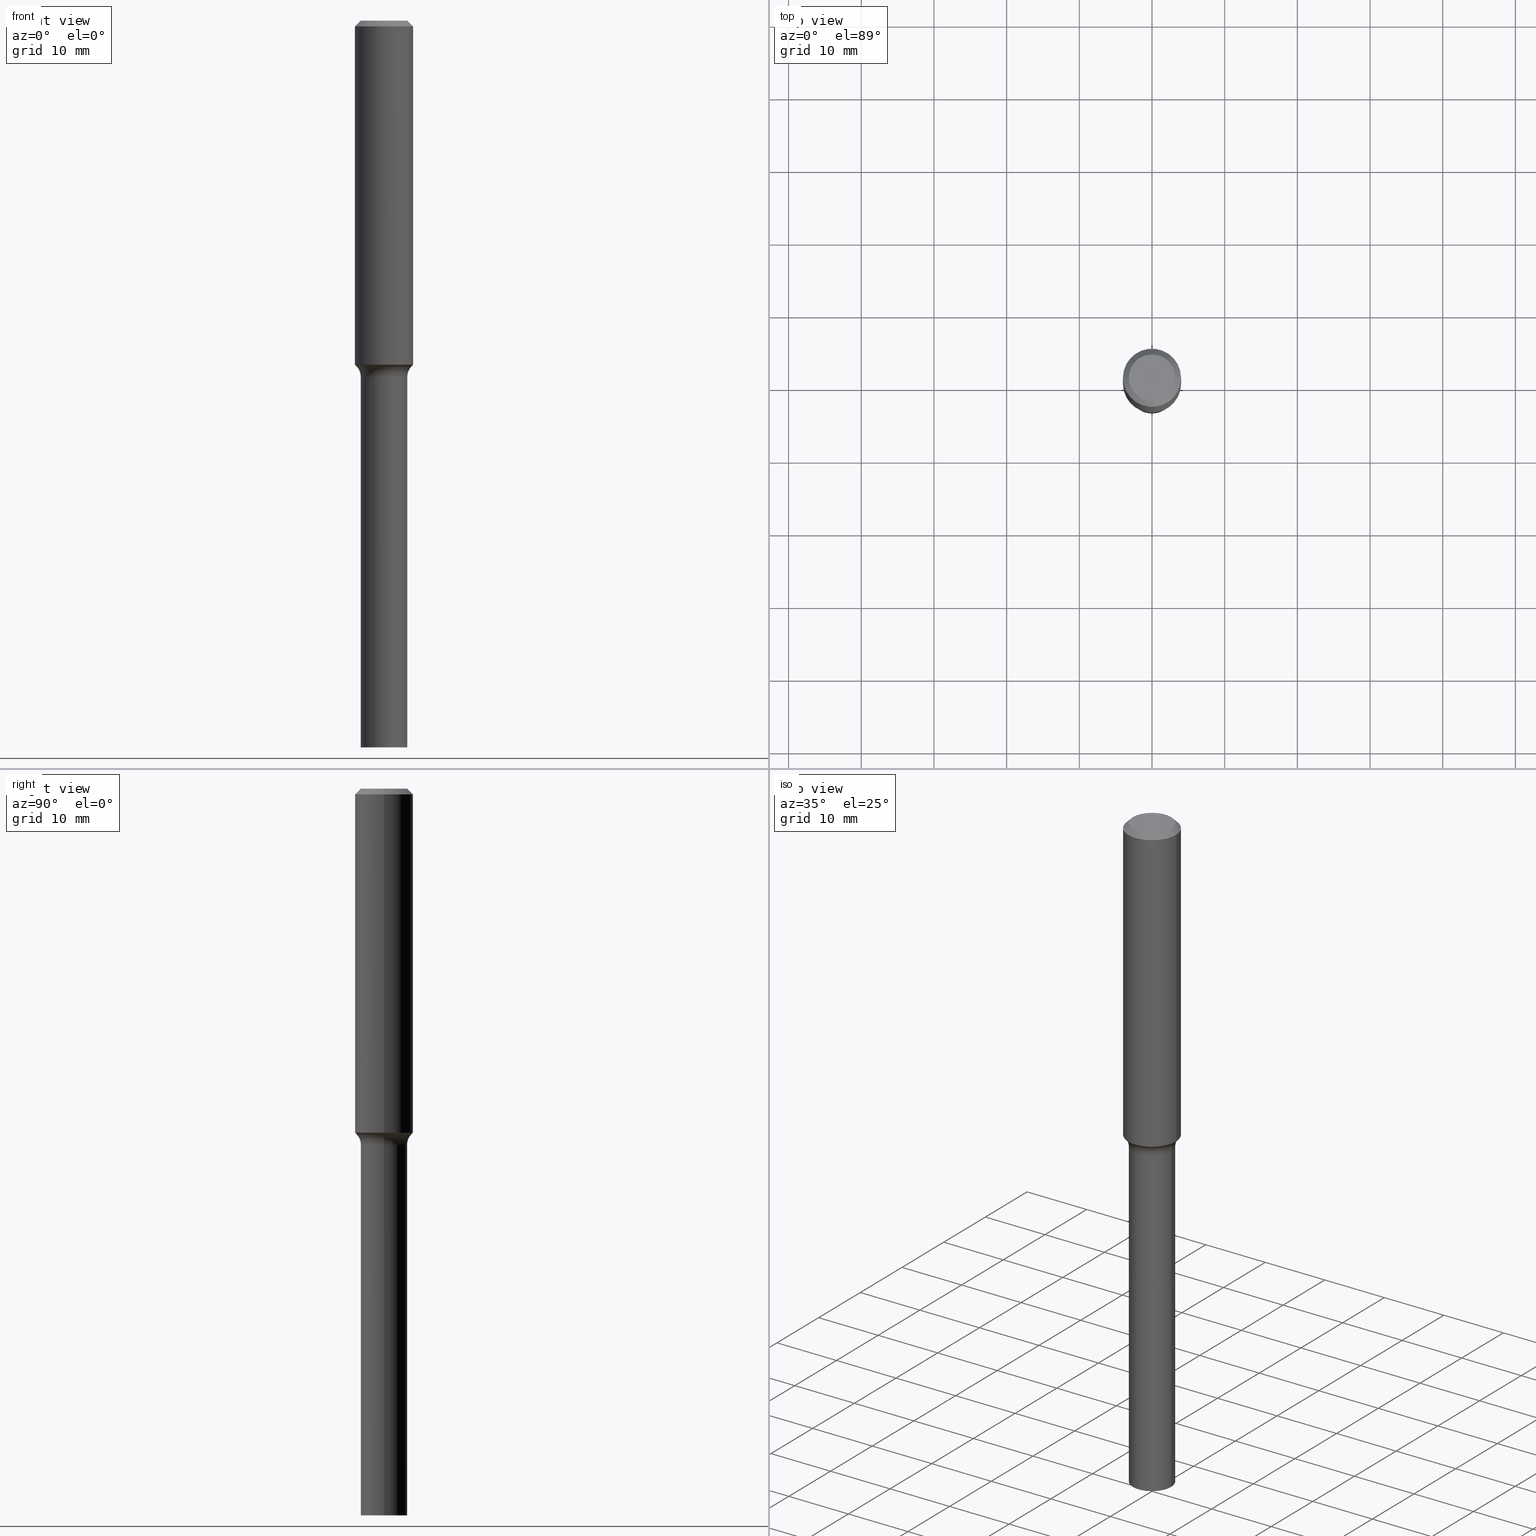
[diagram: canonical four-view strip — front | top / right | iso, engineering-drawing reading convention]
A machine part, canonical four-view strip (front | top / right | iso — engineering-drawing reading convention). The complete STEP part file that produces these views, byte-faithful:
ISO-10303-21;
HEADER;
FILE_DESCRIPTION (( 'STEP AP203' ),
    '1' );
FILE_NAME ('67851.STEP',
    '2025-04-01T15:31:34',
    ( '' ),
    ( '' ),
    'SwSTEP 2.0',
    'SolidWorks 2024',
    '' );
FILE_SCHEMA (( 'CONFIG_CONTROL_DESIGN' ));
ENDSEC;

DATA;
#1 = LINE ( 'NONE', #397, #132 ) ;
#2 = APPLICATION_CONTEXT ( 'configuration controlled 3d designs of mechanical parts and assemblies' ) ;
#3 = AXIS2_PLACEMENT_3D ( 'NONE', #54, #374, #501 ) ;
#4 = COORDINATED_UNIVERSAL_TIME_OFFSET ( 5, 0, .BEHIND. ) ;
#5 = DIRECTION ( 'NONE',  ( -2.445468806185136597E-29, 3.491481338843145583E-15, 1.000000000000000000 ) ) ;
#6 = PERSON_AND_ORGANIZATION_ROLE ( 'creator' ) ;
#7 = DIRECTION ( 'NONE',  ( -0.6819983600624915931, 7.399397606724259755E-15, 0.7313537016191768991 ) ) ;
#8 = DATE_AND_TIME ( #223, #389 ) ;
#9 = CIRCLE ( 'NONE', #343, 0.1260000000000000009 ) ;
#10 = PERSON_AND_ORGANIZATION_ROLE ( 'design_supplier' ) ;
#11 = ADVANCED_FACE ( 'NONE', ( #270 ), #108, .T. ) ;
#12 = DIRECTION ( 'NONE',  ( 2.438088387897960049E-29, -3.491481338843145188E-15, -1.000000000000000000 ) ) ;
#13 = CARTESIAN_POINT ( 'NONE',  ( 4.583884869898948123E-29, -6.544572738846040921E-15, -1.874440131195000303 ) ) ;
#14 = VERTEX_POINT ( 'NONE', #347 ) ;
#15 = FACE_OUTER_BOUND ( 'NONE', #135, .T. ) ;
#16 = VECTOR ( 'NONE', #234, 39.37007874015748143 ) ;
#17 = ORIENTED_EDGE ( 'NONE', *, *, #201, .T. ) ;
#18 = ORIENTED_EDGE ( 'NONE', *, *, #382, .T. ) ;
#19 = EDGE_CURVE ( 'NONE', #57, #31, #142, .T. ) ;
#20 = ORIENTED_EDGE ( 'NONE', *, *, #405, .T. ) ;
#21 = CC_DESIGN_DATE_AND_TIME_ASSIGNMENT ( #318, #80, ( #48 ) ) ;
#22 = CIRCLE ( 'NONE', #275, 0.1260000000000000009 ) ;
#23 = EDGE_LOOP ( 'NONE', ( #144, #308 ) ) ;
#24 = ORIENTED_EDGE ( 'NONE', *, *, #117, .T. ) ;
#25 = EDGE_CURVE ( 'NONE', #70, #300, #146, .T. ) ;
#26 = EDGE_CURVE ( 'NONE', #432, #465, #352, .T. ) ;
#27 = ORIENTED_EDGE ( 'NONE', *, *, #301, .T. ) ;
#28 = FACE_OUTER_BOUND ( 'NONE', #380, .T. ) ;
#29 = VECTOR ( 'NONE', #118, 39.37007874015748143 ) ;
#30 = CC_DESIGN_APPROVAL ( #107, ( #156 ) ) ;
#31 = VERTEX_POINT ( 'NONE', #510 ) ;
#32 = CARTESIAN_POINT ( 'NONE',  ( 6.644338746405015317E-29, -9.486354797636825890E-15, -2.717000000000000082 ) ) ;
#33 = DIRECTION ( 'NONE',  ( 0.7071067811864267805, -2.468850131080992517E-15, 0.7071067811866682540 ) ) ;
#34 = DIRECTION ( 'NONE',  ( -1.000000000000000000, 7.105427357601005014E-15, 0.000000000000000000 ) ) ;
#35 = PERSON_AND_ORGANIZATION_ROLE ( 'classification_officer' ) ;
#36 = CYLINDRICAL_SURFACE ( 'NONE', #237, 0.1259999999999999454 ) ;
#37 = CARTESIAN_POINT ( 'NONE',  ( -0.1260000000000001119, -8.591070950579098861E-15, -2.717000000000000082 ) ) ;
#38 = PERSON_AND_ORGANIZATION ( #170, #191 ) ;
#39 = DIRECTION ( 'NONE',  ( -0.7071067811865447972, 2.468850131082228662E-15, -0.7071067811865501263 ) ) ;
#40 = CARTESIAN_POINT ( 'NONE',  ( 6.644338746405015317E-29, -9.486354797636825890E-15, -2.717000000000000082 ) ) ;
#41 = AXIS2_PLACEMENT_3D ( 'NONE', #420, #183, #415 ) ;
#42 = PRODUCT_DEFINITION_FORMATION_WITH_SPECIFIED_SOURCE ( 'ANY', '', #410, .NOT_KNOWN. ) ;
#43 = DIRECTION ( 'NONE',  ( 1.000000000000000000, -6.982962677686270655E-15, 0.000000000000000000 ) ) ;
#44 = ADVANCED_FACE ( 'NONE', ( #428 ), #315, .T. ) ;
#45 = PERSON_AND_ORGANIZATION ( #170, #191 ) ;
#46 = AXIS2_PLACEMENT_3D ( 'NONE', #366, #12, #332 ) ;
#47 = CARTESIAN_POINT ( 'NONE',  ( 7.703226739483235729E-31, -1.099816621735598771E-16, -0.03150000000000022921 ) ) ;
#48 = SECURITY_CLASSIFICATION ( '', '', #286 ) ;
#49 = MANIFOLD_SOLID_BREP ( 'Body-Move/Copy2[2]', #256 ) ;
#50 = ADVANCED_FACE ( 'NONE', ( #152 ), #150, .F. ) ;
#51 = ORIENTED_EDGE ( 'NONE', *, *, #313, .T. ) ;
#52 = MANIFOLD_SOLID_BREP ( 'Body-Move/Copy2[1]', #371 ) ;
#53 = ORIENTED_EDGE ( 'NONE', *, *, #313, .F. ) ;
#54 = CARTESIAN_POINT ( 'NONE',  ( 4.717309327131129015E-29, -6.735067502628427403E-15, -1.929000000000000048 ) ) ;
#55 = AXIS2_PLACEMENT_3D ( 'NONE', #84, #233, #192 ) ;
#56 = CARTESIAN_POINT ( 'NONE',  ( 0.000000000000000000, 0.000000000000000000, 0.000000000000000000 ) ) ;
#57 = VERTEX_POINT ( 'NONE', #403 ) ;
#58 = ORIENTED_EDGE ( 'NONE', *, *, #69, .F. ) ;
#59 = ORIENTED_EDGE ( 'NONE', *, *, #327, .T. ) ;
#60 = CARTESIAN_POINT ( 'NONE',  ( 0.1259999999999999454, -8.798532973884691559E-16, 6.143982737502876745E-30 ) ) ;
#61 = CC_DESIGN_PERSON_AND_ORGANIZATION_ASSIGNMENT ( #126, #10, ( #42 ) ) ;
#62 = ORIENTED_EDGE ( 'NONE', *, *, #327, .F. ) ;
#63 = DIRECTION ( 'NONE',  ( -2.445468806185136597E-29, 3.491481338843145583E-15, 1.000000000000000000 ) ) ;
#64 = COORDINATED_UNIVERSAL_TIME_OFFSET ( 5, 0, .BEHIND. ) ;
#65 = ADVANCED_FACE ( 'NONE', ( #399 ), #446, .T. ) ;
#66 = VECTOR ( 'NONE', #181, 39.37007874015748143 ) ;
#67 = DIRECTION ( 'NONE',  ( 1.000000000000000000, -6.982962677686271444E-15, 0.000000000000000000 ) ) ;
#68 = CARTESIAN_POINT ( 'NONE',  ( 6.644338746405015317E-29, -9.486354797636825890E-15, -2.717000000000000082 ) ) ;
#69 = EDGE_CURVE ( 'NONE', #251, #484, #190, .T. ) ;
#70 = VERTEX_POINT ( 'NONE', #79 ) ;
#71 = DIRECTION ( 'NONE',  ( 1.000000000000000000, -6.982962677686269077E-15, 0.000000000000000000 ) ) ;
#72 =( LENGTH_UNIT ( ) NAMED_UNIT ( * ) SI_UNIT ( $, .METRE. ) );
#73 = CIRCLE ( 'NONE', #368, 0.1260000000000000009 ) ;
#74 = CARTESIAN_POINT ( 'NONE',  ( 6.644338746405015317E-29, -9.486354797636825890E-15, -2.717000000000000082 ) ) ;
#75 = DIRECTION ( 'NONE',  ( 1.000000000000000000, -6.982962677686259611E-15, 0.000000000000000000 ) ) ;
#76 = EDGE_CURVE ( 'NONE', #454, #349, #165, .T. ) ;
#77 = DIRECTION ( 'NONE',  ( -2.438088387897960049E-29, 3.491481338843145188E-15, 1.000000000000000000 ) ) ;
#78 = DIRECTION ( 'NONE',  ( -2.445468806185136877E-29, 3.491481338843145188E-15, 1.000000000000000000 ) ) ;
#79 = CARTESIAN_POINT ( 'NONE',  ( -0.1255000000000000004, -8.591974437083788559E-15, -2.717000000000000082 ) ) ;
#80 = DATE_TIME_ROLE ( 'classification_date' ) ;
#81 = APPROVAL_ROLE ( '' ) ;
#82 = AXIS2_PLACEMENT_3D ( 'NONE', #252, #335, #131 ) ;
#83 = EDGE_CURVE ( 'NONE', #503, #179, #231, .T. ) ;
#84 = CARTESIAN_POINT ( 'NONE',  ( 4.717309327131129015E-29, -6.735067502628427403E-15, -1.929000000000000048 ) ) ;
#85 = DATE_AND_TIME ( #129, #431 ) ;
#86 = ORIENTED_EDGE ( 'NONE', *, *, #306, .F. ) ;
#87 = AXIS2_PLACEMENT_3D ( 'NONE', #249, #288, #209 ) ;
#88 = ADVANCED_BREP_SHAPE_REPRESENTATION ( '67851', ( #52, #49, #353 ), #419 ) ;
#89 = FACE_OUTER_BOUND ( 'NONE', #138, .T. ) ;
#90 = ORIENTED_EDGE ( 'NONE', *, *, #262, .F. ) ;
#91 = CYLINDRICAL_SURFACE ( 'NONE', #115, 0.1259999999999999454 ) ;
#92 = APPROVAL_ROLE ( '' ) ;
#93 = CARTESIAN_POINT ( 'NONE',  ( 0.1260000000000000009, -1.036446235435587453E-14, -2.716499999999999915 ) ) ;
#94 = ORIENTED_EDGE ( 'NONE', *, *, #177, .F. ) ;
#95 = CARTESIAN_POINT ( 'NONE',  ( 0.1474917038704664507, -7.574501802241863797E-15, -1.874440131195000303 ) ) ;
#96 = CARTESIAN_POINT ( 'NONE',  ( 0.1575000000000000011, -1.190510096822576223E-15, -0.03150000000000022921 ) ) ;
#97 = DIMENSIONAL_EXPONENTS ( 1.000000000000000000, 0.000000000000000000, 0.000000000000000000, 0.000000000000000000, 0.000000000000000000, 0.000000000000000000, 0.000000000000000000 ) ;
#98 = FACE_OUTER_BOUND ( 'NONE', #504, .T. ) ;
#99 = AXIS2_PLACEMENT_3D ( 'NONE', #13, #169, #259 ) ;
#100 = ORIENTED_EDGE ( 'NONE', *, *, #117, .F. ) ;
#101 = EDGE_CURVE ( 'NONE', #369, #340, #162, .T. ) ;
#102 = FACE_OUTER_BOUND ( 'NONE', #411, .T. ) ;
#103 = EDGE_LOOP ( 'NONE', ( #467, #111, #336, #508 ) ) ;
#104 = CARTESIAN_POINT ( 'NONE',  ( -0.1575000000000000011, -2.189436083991743713E-15, -0.03150000000000022921 ) ) ;
#105 = CARTESIAN_POINT ( 'NONE',  ( 4.583884869898948123E-29, -6.544572738846040921E-15, -1.874440131195000303 ) ) ;
#106 = ORIENTED_EDGE ( 'NONE', *, *, #443, .F. ) ;
#107 = APPROVAL ( #402, 'UNSPECIFIED' ) ;
#108 = CONICAL_SURFACE ( 'NONE', #215, 0.1474917038704665617, 0.7504915783575523136 ) ;
#109 = CIRCLE ( 'NONE', #124, 0.1260000000000000009 ) ;
#110 = ORIENTED_EDGE ( 'NONE', *, *, #69, .T. ) ;
#111 = ORIENTED_EDGE ( 'NONE', *, *, #409, .T. ) ;
#112 = APPROVAL_ROLE ( '' ) ;
#113 = EDGE_CURVE ( 'NONE', #392, #465, #22, .T. ) ;
#114 = CARTESIAN_POINT ( 'NONE',  ( -0.1474917038704665617, -5.496581151145642635E-15, -1.874440131195000303 ) ) ;
#115 = AXIS2_PLACEMENT_3D ( 'NONE', #176, #210, #172 ) ;
#116 = CARTESIAN_POINT ( 'NONE',  ( 0.1255000000000000004, -1.036271661368645224E-14, -2.717000000000000082 ) ) ;
#117 = EDGE_CURVE ( 'NONE', #369, #226, #473, .T. ) ;
#118 = DIRECTION ( 'NONE',  ( -2.445468806185136877E-29, 3.491481338843145188E-15, 1.000000000000000000 ) ) ;
#119 = DIRECTION ( 'NONE',  ( 1.000000000000000000, -6.982962677686265922E-15, 4.876281427513067258E-29 ) ) ;
#120 = DIRECTION ( 'NONE',  ( 1.000000000000000000, -6.982962677686270655E-15, 0.000000000000000000 ) ) ;
#121 = APPLICATION_PROTOCOL_DEFINITION ( 'international standard', 'config_control_design', 1994, #2 ) ;
#122 = DIRECTION ( 'NONE',  ( -2.445468806185136597E-29, 3.491481338843145583E-15, 1.000000000000000000 ) ) ;
#123 = ADVANCED_FACE ( 'NONE', ( #102 ), #342, .T. ) ;
#124 = AXIS2_PLACEMENT_3D ( 'NONE', #514, #317, #120 ) ;
#125 = AXIS2_PLACEMENT_3D ( 'NONE', #394, #77, #518 ) ;
#126 = PERSON_AND_ORGANIZATION ( #170, #191 ) ;
#127 = CARTESIAN_POINT ( 'NONE',  ( 0.2059999999999999054, -8.173557814231798409E-15, -1.929000000000000048 ) ) ;
#128 = DIRECTION ( 'NONE',  ( -2.445468806185136597E-29, 3.491481338843145583E-15, 1.000000000000000000 ) ) ;
#129 = CALENDAR_DATE ( 2025, 1, 4 ) ;
#130 = CARTESIAN_POINT ( 'NONE',  ( 6.643116012001922516E-29, -9.484609056967403598E-15, -2.716499999999999915 ) ) ;
#131 = DIRECTION ( 'NONE',  ( 1.000000000000000000, -6.982962677686273021E-15, 0.000000000000000000 ) ) ;
#132 = VECTOR ( 'NONE', #39, 39.37007874015748854 ) ;
#133 = AXIS2_PLACEMENT_3D ( 'NONE', #56, #376, #161 ) ;
#134 = DIRECTION ( 'NONE',  ( 2.438088387897960049E-29, -3.491481338843145188E-15, -1.000000000000000000 ) ) ;
#135 = EDGE_LOOP ( 'NONE', ( #492, #232, #490, #486 ) ) ;
#136 = FACE_OUTER_BOUND ( 'NONE', #263, .T. ) ;
#137 = DIRECTION ( 'NONE',  ( 1.000000000000000000, -6.982962677686266711E-15, 0.000000000000000000 ) ) ;
#138 = EDGE_LOOP ( 'NONE', ( #246, #184 ) ) ;
#139 = DIRECTION ( 'NONE',  ( -2.445468806185136877E-29, 3.491481338843145188E-15, 1.000000000000000000 ) ) ;
#140 = APPROVAL ( #364, 'UNSPECIFIED' ) ;
#141 = EDGE_LOOP ( 'NONE', ( #346, #427, #51, #18 ) ) ;
#142 = CIRCLE ( 'NONE', #509, 0.07999999999999993228 ) ;
#143 = CARTESIAN_POINT ( 'NONE',  ( 4.583884869898948123E-29, -6.544572738846040921E-15, -1.874440131195000303 ) ) ;
#144 = ORIENTED_EDGE ( 'NONE', *, *, #475, .T. ) ;
#145 = CARTESIAN_POINT ( 'NONE',  ( 4.583884869898948123E-29, -6.544572738846040921E-15, -1.874440131195000303 ) ) ;
#146 = LINE ( 'NONE', #305, #438 ) ;
#147 = CARTESIAN_POINT ( 'NONE',  ( -0.1575000000000000844, 1.119104808822158392E-15, -7.747322767151481189E-30 ) ) ;
#148 = EDGE_CURVE ( 'NONE', #454, #251, #345, .T. ) ;
#149 = ORIENTED_EDGE ( 'NONE', *, *, #163, .T. ) ;
#150 = PLANE ( 'NONE',  #499 ) ;
#151 = AXIS2_PLACEMENT_3D ( 'NONE', #487, #134, #354 ) ;
#152 = FACE_OUTER_BOUND ( 'NONE', #23, .T. ) ;
#153 = APPROVAL_STATUS ( 'not_yet_approved' ) ;
#154 = CYLINDRICAL_SURFACE ( 'NONE', #451, 0.1575000000000000844 ) ;
#155 = DIRECTION ( 'NONE',  ( -2.445468806185136597E-29, 3.491481338843145583E-15, 1.000000000000000000 ) ) ;
#156 = PRODUCT_DEFINITION ( 'UNKNOWN', '', #42, #448 ) ;
#157 = CARTESIAN_POINT ( 'NONE',  ( 0.000000000000000000, 0.000000000000000000, 0.000000000000000000 ) ) ;
#158 = CARTESIAN_POINT ( 'NONE',  ( 0.1575000000000000011, -1.209798283909146938E-15, -0.03150000000000022921 ) ) ;
#159 = AXIS2_PLACEMENT_3D ( 'NONE', #370, #174, #450 ) ;
#160 = CALENDAR_DATE ( 2025, 1, 4 ) ;
#161 = DIRECTION ( 'NONE',  ( 1.000000000000000000, -6.982962677686267499E-15, 4.876176775795936353E-29 ) ) ;
#162 = LINE ( 'NONE', #358, #16 ) ;
#163 = EDGE_CURVE ( 'NONE', #432, #211, #200, .T. ) ;
#164 = DIRECTION ( 'NONE',  ( -6.982962677686266711E-15, -1.000000000000000000, 3.491481338843145583E-15 ) ) ;
#165 = CIRCLE ( 'NONE', #182, 0.1260000000000000009 ) ;
#166 = VECTOR ( 'NONE', #429, 39.37007874015748143 ) ;
#167 = CARTESIAN_POINT ( 'NONE',  ( 7.703226739483235729E-31, -1.099816621735598771E-16, -0.03150000000000022921 ) ) ;
#168 = DIRECTION ( 'NONE',  ( -2.445468806185136597E-29, 3.491481338843145583E-15, 1.000000000000000000 ) ) ;
#169 = DIRECTION ( 'NONE',  ( -2.445468806185136597E-29, 3.491481338843145583E-15, 1.000000000000000000 ) ) ;
#170 = PERSON ( 'UNSPECIFIED', 'UNSPECIFIED', 'UNSPECIFIED', ('UNSPECIFIED'), ('UNSPECIFIED'), ('UNSPECIFIED') ) ;
#171 = ORIENTED_EDGE ( 'NONE', *, *, #25, .F. ) ;
#172 = DIRECTION ( 'NONE',  ( 1.000000000000000000, -6.982962677686265922E-15, 4.876176775795935793E-29 ) ) ;
#173 = CIRCLE ( 'NONE', #416, 0.1575000000000002232 ) ;
#174 = DIRECTION ( 'NONE',  ( -2.445468806185136597E-29, 3.491481338843145583E-15, 1.000000000000000000 ) ) ;
#175 = ORIENTED_EDGE ( 'NONE', *, *, #19, .F. ) ;
#176 = CARTESIAN_POINT ( 'NONE',  ( 0.000000000000000000, 0.000000000000000000, 0.000000000000000000 ) ) ;
#177 = EDGE_CURVE ( 'NONE', #340, #251, #412, .T. ) ;
#178 = DATE_AND_TIME ( #248, #290 ) ;
#179 = VERTEX_POINT ( 'NONE', #93 ) ;
#180 = ORIENTED_EDGE ( 'NONE', *, *, #348, .F. ) ;
#181 = DIRECTION ( 'NONE',  ( -2.445468806185136877E-29, 3.491481338843145188E-15, 1.000000000000000000 ) ) ;
#182 = AXIS2_PLACEMENT_3D ( 'NONE', #360, #128, #119 ) ;
#183 = DIRECTION ( 'NONE',  ( 2.445468806185136597E-29, -3.491481338843145583E-15, -1.000000000000000000 ) ) ;
#184 = ORIENTED_EDGE ( 'NONE', *, *, #337, .F. ) ;
#185 = DIRECTION ( 'NONE',  ( 1.000000000000000000, -6.982962677686266711E-15, 0.000000000000000000 ) ) ;
#186 = ORIENTED_EDGE ( 'NONE', *, *, #306, .T. ) ;
#187 = PERSON_AND_ORGANIZATION ( #170, #191 ) ;
#188 = CYLINDRICAL_SURFACE ( 'NONE', #133, 0.1575000000000000844 ) ;
#189 = ORIENTED_EDGE ( 'NONE', *, *, #76, .F. ) ;
#190 = CIRCLE ( 'NONE', #488, 0.1575000000000000011 ) ;
#191 = ORGANIZATION ( 'UNSPECIFIED', 'UNSPECIFIED', '' ) ;
#192 = DIRECTION ( 'NONE',  ( 1.000000000000000000, -6.982962677686265922E-15, 4.883557194083112340E-29 ) ) ;
#193 = EDGE_LOOP ( 'NONE', ( #304, #373, #58, #94 ) ) ;
#194 = ADVANCED_FACE ( 'NONE', ( #295 ), #497, .T. ) ;
#195 = DATE_AND_TIME ( #515, #480 ) ;
#196 = DIRECTION ( 'NONE',  ( 7.105427357601001859E-15, 1.000000000000000000, -3.491481338843145583E-15 ) ) ;
#197 = PERSON_AND_ORGANIZATION_ROLE ( 'creator' ) ;
#198 = MECHANICAL_CONTEXT ( 'NONE', #375, 'mechanical' ) ;
#199 = APPROVAL_DATE_TIME ( #8, #493 ) ;
#200 = CIRCLE ( 'NONE', #82, 0.1260000000000002507 ) ;
#201 = EDGE_CURVE ( 'NONE', #226, #31, #307, .T. ) ;
#202 = PERSON_AND_ORGANIZATION_ROLE ( 'design_owner' ) ;
#203 = CIRCLE ( 'NONE', #459, 0.1575000000000000011 ) ;
#204 = DIRECTION ( 'NONE',  ( -2.445468806185136597E-29, 3.491481338843145583E-15, 1.000000000000000000 ) ) ;
#205 = CIRCLE ( 'NONE', #322, 0.1255000000000000004 ) ;
#206 = CIRCLE ( 'NONE', #489, 0.1575000000000002232 ) ;
#207 = EDGE_CURVE ( 'NONE', #369, #57, #466, .T. ) ;
#208 = ORIENTED_EDGE ( 'NONE', *, *, #19, .T. ) ;
#209 = DIRECTION ( 'NONE',  ( 1.000000000000000000, -6.982962677686265133E-15, 0.000000000000000000 ) ) ;
#210 = DIRECTION ( 'NONE',  ( -2.445468806185136597E-29, 3.491481338843145583E-15, 1.000000000000000000 ) ) ;
#211 = VERTEX_POINT ( 'NONE', #423 ) ;
#212 = DIRECTION ( 'NONE',  ( 0.7071067811865447972, -7.319954787623245001E-15, -0.7071067811865501263 ) ) ;
#213 = ORIENTED_EDGE ( 'NONE', *, *, #309, .T. ) ;
#214 = ADVANCED_FACE ( 'NONE', ( #98 ), #351, .T. ) ;
#215 = AXIS2_PLACEMENT_3D ( 'NONE', #105, #155, #185 ) ;
#216 = VECTOR ( 'NONE', #139, 39.37007874015748143 ) ;
#217 = CIRCLE ( 'NONE', #440, 0.1259999999999998899 ) ;
#218 = EDGE_LOOP ( 'NONE', ( #59, #338 ) ) ;
#219 = PLANE ( 'NONE',  #151 ) ;
#220 = DIRECTION ( 'NONE',  ( -2.445468806185136597E-29, 3.491481338843145583E-15, 1.000000000000000000 ) ) ;
#221 = ORIENTED_EDGE ( 'NONE', *, *, #337, .T. ) ;
#222 = AXIS2_PLACEMENT_3D ( 'NONE', #127, #164, #283 ) ;
#223 = CALENDAR_DATE ( 2025, 1, 4 ) ;
#224 = DIRECTION ( 'NONE',  ( 1.000000000000000000, -6.982962677686266711E-15, 0.000000000000000000 ) ) ;
#225 = DIRECTION ( 'NONE',  ( 1.000000000000000000, -6.982962677686259611E-15, 0.000000000000000000 ) ) ;
#226 = VERTEX_POINT ( 'NONE', #328 ) ;
#227 = CC_DESIGN_PERSON_AND_ORGANIZATION_ASSIGNMENT ( #240, #35, ( #48 ) ) ;
#228 = AXIS2_PLACEMENT_3D ( 'NONE', #481, #254, #243 ) ;
#229 = LENGTH_MEASURE_WITH_UNIT ( LENGTH_MEASURE( 0.02539999999999999897 ), #72 );
#230 = CARTESIAN_POINT ( 'NONE',  ( 0.000000000000000000, 0.000000000000000000, 0.000000000000000000 ) ) ;
#231 = LINE ( 'NONE', #398, #430 ) ;
#232 = ORIENTED_EDGE ( 'NONE', *, *, #262, .T. ) ;
#233 = DIRECTION ( 'NONE',  ( -2.445468806185136597E-29, 3.491481338843145583E-15, 1.000000000000000000 ) ) ;
#234 = DIRECTION ( 'NONE',  ( 0.6819983600624915931, -2.208861293262404411E-15, 0.7313537016191768991 ) ) ;
#235 = PERSON_AND_ORGANIZATION ( #170, #191 ) ;
#236 = COORDINATED_UNIVERSAL_TIME_OFFSET ( 5, 0, .BEHIND. ) ;
#237 = AXIS2_PLACEMENT_3D ( 'NONE', #474, #357, #435 ) ;
#238 = DIRECTION ( 'NONE',  ( 2.445468806185136597E-29, -3.491481338843145583E-15, -1.000000000000000000 ) ) ;
#239 = ADVANCED_FACE ( 'NONE', ( #89 ), #219, .T. ) ;
#240 = PERSON_AND_ORGANIZATION ( #170, #191 ) ;
#241 = DATE_TIME_ROLE ( 'creation_date' ) ;
#242 = VECTOR ( 'NONE', #212, 39.37007874015748854 ) ;
#243 = DIRECTION ( 'NONE',  ( 1.000000000000000000, -6.982962677686265133E-15, 0.000000000000000000 ) ) ;
#244 = AXIS2_PLACEMENT_3D ( 'NONE', #145, #302, #224 ) ;
#245 = ADVANCED_FACE ( 'NONE', ( #445 ), #281, .F. ) ;
#246 = ORIENTED_EDGE ( 'NONE', *, *, #163, .F. ) ;
#247 = FACE_OUTER_BOUND ( 'NONE', #218, .T. ) ;
#248 = CALENDAR_DATE ( 2025, 1, 4 ) ;
#249 = CARTESIAN_POINT ( 'NONE',  ( 6.644338746405015317E-29, -9.486354797636825890E-15, -2.717000000000000082 ) ) ;
#250 = ADVANCED_FACE ( 'NONE', ( #442 ), #330, .T. ) ;
#251 = VERTEX_POINT ( 'NONE', #158 ) ;
#252 = CARTESIAN_POINT ( 'NONE',  ( 9.627810689950883669E-29, -1.374596203102546341E-14, -3.937000000000000277 ) ) ;
#253 = EDGE_LOOP ( 'NONE', ( #149, #27, #62, #274 ) ) ;
#254 = DIRECTION ( 'NONE',  ( -2.445468806185136597E-29, 3.491481338843145583E-15, 1.000000000000000000 ) ) ;
#255 = CARTESIAN_POINT ( 'NONE',  ( 0.1260000000000002507, -1.462581532841393592E-14, -3.937000000000000277 ) ) ;
#256 = CLOSED_SHELL ( 'NONE', ( #250, #123, #393, #214, #245, #485, #356, #365, #11, #284, #65, #50, #401, #44 ) ) ;
#257 = AXIS2_PLACEMENT_3D ( 'NONE', #74, #5, #319 ) ;
#258 = VECTOR ( 'NONE', #7, 39.37007874015748143 ) ;
#259 = DIRECTION ( 'NONE',  ( 1.000000000000000000, -6.982962677686266711E-15, 0.000000000000000000 ) ) ;
#260 = ORIENTED_EDGE ( 'NONE', *, *, #455, .F. ) ;
#261 = DIRECTION ( 'NONE',  ( -2.445468806185136597E-29, 3.491481338843145583E-15, 1.000000000000000000 ) ) ;
#262 = EDGE_CURVE ( 'NONE', #300, #179, #109, .T. ) ;
#263 = EDGE_LOOP ( 'NONE', ( #175, #434, #24, #17 ) ) ;
#264 = DIRECTION ( 'NONE',  ( 1.000000000000000000, -6.982962677686265922E-15, 0.000000000000000000 ) ) ;
#265 = LINE ( 'NONE', #147, #166 ) ;
#266 = CARTESIAN_POINT ( 'NONE',  ( 0.1260000000000001119, -1.036620809502529682E-14, -2.717000000000000082 ) ) ;
#267 = CIRCLE ( 'NONE', #244, 0.1474917038704665617 ) ;
#268 = APPROVAL_PERSON_ORGANIZATION ( #444, #107, #81 ) ;
#269 = CARTESIAN_POINT ( 'NONE',  ( 6.644338746405015317E-29, -9.486354797636825890E-15, -2.717000000000000082 ) ) ;
#270 = FACE_OUTER_BOUND ( 'NONE', #298, .T. ) ;
#271 = CARTESIAN_POINT ( 'NONE',  ( 4.557638671470984691E-29, -6.507100123454245542E-15, -1.863707547585027102 ) ) ;
#272 = CC_DESIGN_PERSON_AND_ORGANIZATION_ASSIGNMENT ( #38, #202, ( #410 ) ) ;
#273 = COORDINATED_UNIVERSAL_TIME_OFFSET ( 5, 0, .BEHIND. ) ;
#274 = ORIENTED_EDGE ( 'NONE', *, *, #26, .F. ) ;
#275 = AXIS2_PLACEMENT_3D ( 'NONE', #40, #320, #477 ) ;
#276 = CIRCLE ( 'NONE', #363, 0.1260000000000000009 ) ;
#277 = LINE ( 'NONE', #441, #387 ) ;
#278 = DIRECTION ( 'NONE',  ( 0.000000000000000000, 0.000000000000000000, 1.000000000000000000 ) ) ;
#279 = LINE ( 'NONE', #37, #29 ) ;
#280 = DIRECTION ( 'NONE',  ( 1.000000000000000000, -6.982962677686271444E-15, 0.000000000000000000 ) ) ;
#281 = TOROIDAL_SURFACE ( 'NONE', #55, 0.2059999999999999054, 0.07999999999999993228 ) ;
#282 = ORIENTED_EDGE ( 'NONE', *, *, #378, .F. ) ;
#283 = DIRECTION ( 'NONE',  ( 1.000000000000000000, -6.982962677686265133E-15, 0.000000000000000000 ) ) ;
#284 = ADVANCED_FACE ( 'NONE', ( #472 ), #154, .T. ) ;
#285 = PLANE ( 'NONE',  #46 ) ;
#286 = SECURITY_CLASSIFICATION_LEVEL ( 'unclassified' ) ;
#287 = DIRECTION ( 'NONE',  ( 1.000000000000000000, -6.982962677686270655E-15, 0.000000000000000000 ) ) ;
#288 = DIRECTION ( 'NONE',  ( -2.445468806185136597E-29, 3.491481338843145583E-15, 1.000000000000000000 ) ) ;
#289 = CARTESIAN_POINT ( 'NONE',  ( 6.644338746405015317E-29, -9.486354797636825890E-15, -2.717000000000000082 ) ) ;
#290 = LOCAL_TIME ( 11, 31, 34.00000000000000000, #414 ) ;
#291 = ORIENTED_EDGE ( 'NONE', *, *, #83, .T. ) ;
#292 = EDGE_CURVE ( 'NONE', #340, #14, #173, .T. ) ;
#293 = PRODUCT_DEFINITION_SHAPE ( 'NONE', 'NONE',  #156 ) ;
#294 = EDGE_LOOP ( 'NONE', ( #282, #208, #20, #100 ) ) ;
#295 = FACE_OUTER_BOUND ( 'NONE', #496, .T. ) ;
#296 = ORIENTED_EDGE ( 'NONE', *, *, #505, .F. ) ;
#297 = CYLINDRICAL_SURFACE ( 'NONE', #228, 0.1260000000000001119 ) ;
#298 = EDGE_LOOP ( 'NONE', ( #296, #456, #452, #413 ) ) ;
#299 = CIRCLE ( 'NONE', #406, 0.1260000000000002507 ) ;
#300 = VERTEX_POINT ( 'NONE', #478 ) ;
#301 = EDGE_CURVE ( 'NONE', #211, #392, #279, .T. ) ;
#302 = DIRECTION ( 'NONE',  ( -2.445468806185136597E-29, 3.491481338843145583E-15, 1.000000000000000000 ) ) ;
#303 = DIRECTION ( 'NONE',  ( -2.445468806185136597E-29, 3.491481338843145583E-15, 1.000000000000000000 ) ) ;
#304 = ORIENTED_EDGE ( 'NONE', *, *, #292, .T. ) ;
#305 = CARTESIAN_POINT ( 'NONE',  ( -0.1255000000000000004, -8.594623664257900548E-15, -2.717000000000000082 ) ) ;
#306 = EDGE_CURVE ( 'NONE', #503, #70, #205, .T. ) ;
#307 = CIRCLE ( 'NONE', #159, 0.1259999999999998899 ) ;
#308 = ORIENTED_EDGE ( 'NONE', *, *, #76, .T. ) ;
#309 = EDGE_CURVE ( 'NONE', #300, #31, #277, .T. ) ;
#310 = CC_DESIGN_SECURITY_CLASSIFICATION ( #48, ( #42 ) ) ;
#311 = DIRECTION ( 'NONE',  ( 2.438088387897960049E-29, -3.491481338843145188E-15, -1.000000000000000000 ) ) ;
#312 = DIRECTION ( 'NONE',  ( -2.445468806185136597E-29, 3.491481338843145583E-15, 1.000000000000000000 ) ) ;
#313 = EDGE_CURVE ( 'NONE', #349, #484, #1, .T. ) ;
#314 = DIRECTION ( 'NONE',  ( 1.000000000000000000, 0.000000000000000000, 0.000000000000000000 ) ) ;
#315 = CONICAL_SURFACE ( 'NONE', #479, 0.1255000000000000004, 0.7853981633972775267 ) ;
#316 = CC_DESIGN_APPROVAL ( #493, ( #42 ) ) ;
#317 = DIRECTION ( 'NONE',  ( -2.445468806185136597E-29, 3.491481338843145583E-15, 1.000000000000000000 ) ) ;
#318 = DATE_AND_TIME ( #160, #447 ) ;
#319 = DIRECTION ( 'NONE',  ( 1.000000000000000000, -6.982962677686259611E-15, 0.000000000000000000 ) ) ;
#320 = DIRECTION ( 'NONE',  ( -2.445468806185136597E-29, 3.491481338843145583E-15, 1.000000000000000000 ) ) ;
#321 = ADVANCED_FACE ( 'NONE', ( #404 ), #297, .T. ) ;
#322 = AXIS2_PLACEMENT_3D ( 'NONE', #32, #470, #75 ) ;
#323 = APPROVAL_PERSON_ORGANIZATION ( #187, #493, #112 ) ;
#324 = DIRECTION ( 'NONE',  ( -2.445468806185136597E-29, 3.491481338843145583E-15, 1.000000000000000000 ) ) ;
#325 = APPROVAL_DATE_TIME ( #195, #107 ) ;
#326 = DIRECTION ( 'NONE',  ( -1.000000000000000000, 6.982962677686265922E-15, 0.000000000000000000 ) ) ;
#327 = EDGE_CURVE ( 'NONE', #465, #392, #9, .T. ) ;
#328 = CARTESIAN_POINT ( 'NONE',  ( 0.1259999999999998899, -7.614920800016896756E-15, -1.929000000000000048 ) ) ;
#329 = UNCERTAINTY_MEASURE_WITH_UNIT (LENGTH_MEASURE( 1.000000000000000082E-05 ), #390, 'distance_accuracy_value', 'NONE');
#330 = CONICAL_SURFACE ( 'NONE', #257, 0.1255000000000000004, 0.7853981633972775267 ) ;
#331 = ORIENTED_EDGE ( 'NONE', *, *, #113, .F. ) ;
#332 = DIRECTION ( 'NONE',  ( -1.000000000000000000, 6.982962677686265922E-15, -4.876176775795935793E-29 ) ) ;
#333 = CC_DESIGN_APPROVAL ( #140, ( #48 ) ) ;
#334 = APPROVAL_DATE_TIME ( #178, #140 ) ;
#335 = DIRECTION ( 'NONE',  ( -2.445468806185136597E-29, 3.491481338843145583E-15, 1.000000000000000000 ) ) ;
#336 = ORIENTED_EDGE ( 'NONE', *, *, #177, .T. ) ;
#337 = EDGE_CURVE ( 'NONE', #211, #432, #299, .T. ) ;
#338 = ORIENTED_EDGE ( 'NONE', *, *, #113, .T. ) ;
#339 = ADVANCED_FACE ( 'NONE', ( #247 ), #285, .F. ) ;
#340 = VERTEX_POINT ( 'NONE', #491 ) ;
#341 = CARTESIAN_POINT ( 'NONE',  ( -9.439721640706193907E-47, 1.347742071746725396E-32, 3.860086710912455880E-18 ) ) ;
#342 = CONICAL_SURFACE ( 'NONE', #41, 0.1575000000000000011, 0.7853981633974445042 ) ;
#343 = AXIS2_PLACEMENT_3D ( 'NONE', #289, #324, #43 ) ;
#344 = APPROVAL_PERSON_ORGANIZATION ( #235, #140, #92 ) ;
#345 = LINE ( 'NONE', #96, #242 ) ;
#346 = ORIENTED_EDGE ( 'NONE', *, *, #148, .F. ) ;
#347 = CARTESIAN_POINT ( 'NONE',  ( -0.1575000000000002232, -5.387995314632085572E-15, -1.863707547585027102 ) ) ;
#348 = EDGE_CURVE ( 'NONE', #179, #300, #73, .T. ) ;
#349 = VERTEX_POINT ( 'NONE', #408 ) ;
#350 = DIRECTION ( 'NONE',  ( -2.445468806185136597E-29, 3.491481338843145583E-15, 1.000000000000000000 ) ) ;
#351 = CONICAL_SURFACE ( 'NONE', #99, 0.1474917038704665617, 0.7504915783575523136 ) ;
#352 = LINE ( 'NONE', #266, #498 ) ;
#353 = AXIS2_PLACEMENT_3D ( 'NONE', #157, #278, #314 ) ;
#354 = DIRECTION ( 'NONE',  ( -1.000000000000000000, 6.982962677686265922E-15, -4.876176775795935793E-29 ) ) ;
#355 = ORIENTED_EDGE ( 'NONE', *, *, #207, .T. ) ;
#356 = ADVANCED_FACE ( 'NONE', ( #15 ), #91, .T. ) ;
#357 = DIRECTION ( 'NONE',  ( -2.445468806185136597E-29, 3.491481338843145583E-15, 1.000000000000000000 ) ) ;
#358 = CARTESIAN_POINT ( 'NONE',  ( 0.1474917038704665617, -7.574501802241863797E-15, -1.874440131195000303 ) ) ;
#359 =( NAMED_UNIT ( * ) PLANE_ANGLE_UNIT ( ) SI_UNIT ( $, .RADIAN. ) );
#360 = CARTESIAN_POINT ( 'NONE',  ( -9.439721640706193907E-47, 1.347742071746725396E-32, 3.860086710912455880E-18 ) ) ;
#361 = AXIS2_PLACEMENT_3D ( 'NONE', #167, #238, #326 ) ;
#362 = CARTESIAN_POINT ( 'NONE',  ( 4.717309327131129015E-29, -6.735067502628427403E-15, -1.929000000000000048 ) ) ;
#363 = AXIS2_PLACEMENT_3D ( 'NONE', #341, #303, #463 ) ;
#364 = APPROVAL_STATUS ( 'not_yet_approved' ) ;
#365 = ADVANCED_FACE ( 'NONE', ( #136 ), #381, .F. ) ;
#366 = CARTESIAN_POINT ( 'NONE',  ( 6.644338746405015317E-29, -9.486354797636825890E-15, -2.717000000000000082 ) ) ;
#367 = DIRECTION ( 'NONE',  ( -2.445468806185136597E-29, 3.491481338843145583E-15, 1.000000000000000000 ) ) ;
#368 = AXIS2_PLACEMENT_3D ( 'NONE', #130, #168, #287 ) ;
#369 = VERTEX_POINT ( 'NONE', #95 ) ;
#370 = CARTESIAN_POINT ( 'NONE',  ( 4.717309327131129015E-29, -6.735067502628427403E-15, -1.929000000000000048 ) ) ;
#371 = CLOSED_SHELL ( 'NONE', ( #321, #239, #194, #339 ) ) ;
#372 = AXIS2_PLACEMENT_3D ( 'NONE', #143, #457, #137 ) ;
#373 = ORIENTED_EDGE ( 'NONE', *, *, #418, .T. ) ;
#374 = DIRECTION ( 'NONE',  ( -2.445468806185136597E-29, 3.491481338843145583E-15, 1.000000000000000000 ) ) ;
#375 = APPLICATION_CONTEXT ( 'configuration controlled 3d designs of mechanical parts and assemblies' ) ;
#376 = DIRECTION ( 'NONE',  ( -2.445468806185136597E-29, 3.491481338843145583E-15, 1.000000000000000000 ) ) ;
#377 = ORIENTED_EDGE ( 'NONE', *, *, #301, .F. ) ;
#378 = EDGE_CURVE ( 'NONE', #57, #369, #267, .T. ) ;
#379 = ORIENTED_EDGE ( 'NONE', *, *, #292, .F. ) ;
#380 = EDGE_LOOP ( 'NONE', ( #86, #106 ) ) ;
#381 = TOROIDAL_SURFACE ( 'NONE', #3, 0.2059999999999999054, 0.07999999999999993228 ) ;
#382 = EDGE_CURVE ( 'NONE', #484, #251, #203, .T. ) ;
#383 = CARTESIAN_POINT ( 'NONE',  ( -4.719860820353096954E-47, 6.738710358733626979E-33, 1.930043355456227940E-18 ) ) ;
#384 = FACE_OUTER_BOUND ( 'NONE', #193, .T. ) ;
#385 = LINE ( 'NONE', #60, #66 ) ;
#386 = ORIENTED_EDGE ( 'NONE', *, *, #25, .T. ) ;
#387 = VECTOR ( 'NONE', #78, 39.37007874015748143 ) ;
#388 = ORIENTED_EDGE ( 'NONE', *, *, #148, .T. ) ;
#389 = LOCAL_TIME ( 11, 31, 34.00000000000000000, #64 ) ;
#390 =( CONVERSION_BASED_UNIT ( 'INCH', #229 ) LENGTH_UNIT ( ) NAMED_UNIT ( #97 ) );
#391 = CARTESIAN_POINT ( 'NONE',  ( 4.557638671470984691E-29, -6.507100123454245542E-15, -1.863707547585027102 ) ) ;
#392 = VERTEX_POINT ( 'NONE', #425 ) ;
#393 = ADVANCED_FACE ( 'NONE', ( #384 ), #188, .T. ) ;
#394 = CARTESIAN_POINT ( 'NONE',  ( 6.644338746405015317E-29, -9.486354797636825890E-15, -2.717000000000000082 ) ) ;
#395 = FACE_OUTER_BOUND ( 'NONE', #436, .T. ) ;
#396 = DIRECTION ( 'NONE',  ( 1.000000000000000000, -6.982962677686265922E-15, 0.000000000000000000 ) ) ;
#397 = CARTESIAN_POINT ( 'NONE',  ( -0.1575000000000000011, 9.898349595620270362E-16, -0.03150000000000022921 ) ) ;
#398 = CARTESIAN_POINT ( 'NONE',  ( 0.1255000000000000004, -1.036271661368645224E-14, -2.717000000000000082 ) ) ;
#399 = FACE_OUTER_BOUND ( 'NONE', #141, .T. ) ;
#400 = CIRCLE ( 'NONE', #502, 0.1255000000000000004 ) ;
#401 = ADVANCED_FACE ( 'NONE', ( #28 ), #512, .F. ) ;
#402 = APPROVAL_STATUS ( 'not_yet_approved' ) ;
#403 = CARTESIAN_POINT ( 'NONE',  ( -0.1474917038704664507, -5.496581151145642635E-15, -1.874440131195000303 ) ) ;
#404 = FACE_OUTER_BOUND ( 'NONE', #253, .T. ) ;
#405 = EDGE_CURVE ( 'NONE', #31, #226, #217, .T. ) ;
#406 = AXIS2_PLACEMENT_3D ( 'NONE', #453, #204, #483 ) ;
#407 = ORIENTED_EDGE ( 'NONE', *, *, #348, .T. ) ;
#408 = CARTESIAN_POINT ( 'NONE',  ( -0.1260000000000000009, 9.348441284752482932E-16, 3.860086710906110326E-18 ) ) ;
#409 = EDGE_CURVE ( 'NONE', #14, #340, #206, .T. ) ;
#410 = PRODUCT ( '67851', '67851', '', ( #198 ) ) ;
#411 = EDGE_LOOP ( 'NONE', ( #189, #388, #110, #53 ) ) ;
#412 = LINE ( 'NONE', #494, #216 ) ;
#413 = ORIENTED_EDGE ( 'NONE', *, *, #409, .F. ) ;
#414 = COORDINATED_UNIVERSAL_TIME_OFFSET ( 5, 0, .BEHIND. ) ;
#415 = DIRECTION ( 'NONE',  ( -1.000000000000000000, 6.982962677686265922E-15, 0.000000000000000000 ) ) ;
#416 = AXIS2_PLACEMENT_3D ( 'NONE', #391, #122, #280 ) ;
#417 = ORIENTED_EDGE ( 'NONE', *, *, #101, .F. ) ;
#418 = EDGE_CURVE ( 'NONE', #14, #484, #265, .T. ) ;
#419 =( GEOMETRIC_REPRESENTATION_CONTEXT ( 3 ) GLOBAL_UNCERTAINTY_ASSIGNED_CONTEXT ( ( #329 ) ) GLOBAL_UNIT_ASSIGNED_CONTEXT ( ( #390, #359, #513 ) ) REPRESENTATION_CONTEXT ( 'NONE', 'WORKASPACE' ) );
#420 = CARTESIAN_POINT ( 'NONE',  ( 7.703226739483235729E-31, -1.099816621735598771E-16, -0.03150000000000022921 ) ) ;
#421 = ORIENTED_EDGE ( 'NONE', *, *, #443, .T. ) ;
#422 = DIRECTION ( 'NONE',  ( 1.000000000000000000, -6.982962677686259611E-15, 0.000000000000000000 ) ) ;
#423 = CARTESIAN_POINT ( 'NONE',  ( -0.1260000000000002507, -1.072087456727341526E-14, -3.937000000000000277 ) ) ;
#424 = EDGE_LOOP ( 'NONE', ( #171, #421, #291, #90 ) ) ;
#425 = CARTESIAN_POINT ( 'NONE',  ( -0.1260000000000000009, -1.072087456727341683E-14, -2.717000000000000082 ) ) ;
#426 = CARTESIAN_POINT ( 'NONE',  ( 0.1260000000000000009, -1.036620809502529682E-14, -2.717000000000000082 ) ) ;
#427 = ORIENTED_EDGE ( 'NONE', *, *, #475, .F. ) ;
#428 = FACE_OUTER_BOUND ( 'NONE', #424, .T. ) ;
#429 = DIRECTION ( 'NONE',  ( -2.445468806185136877E-29, 3.491481338843145188E-15, 1.000000000000000000 ) ) ;
#430 = VECTOR ( 'NONE', #33, 39.37007874015748143 ) ;
#431 = LOCAL_TIME ( 11, 31, 34.00000000000000000, #273 ) ;
#432 = VERTEX_POINT ( 'NONE', #255 ) ;
#433 = CARTESIAN_POINT ( 'NONE',  ( 0.1260000000000000009, -1.027466422270894640E-15, 3.860086710919124220E-18 ) ) ;
#434 = ORIENTED_EDGE ( 'NONE', *, *, #207, .F. ) ;
#435 = DIRECTION ( 'NONE',  ( 1.000000000000000000, -6.982962677686265922E-15, 4.876176775795935793E-29 ) ) ;
#436 = EDGE_LOOP ( 'NONE', ( #407, #213, #516, #260 ) ) ;
#437 = CC_DESIGN_DATE_AND_TIME_ASSIGNMENT ( #85, #241, ( #156 ) ) ;
#438 = VECTOR ( 'NONE', #464, 39.37007874015748143 ) ;
#439 = CARTESIAN_POINT ( 'NONE',  ( -0.2059999999999999054, -5.271349466962622087E-15, -1.929000000000000048 ) ) ;
#440 = AXIS2_PLACEMENT_3D ( 'NONE', #362, #350, #71 ) ;
#441 = CARTESIAN_POINT ( 'NONE',  ( -0.1259999999999999454, 8.952838470577258461E-16, -6.197858213721179206E-30 ) ) ;
#442 = FACE_OUTER_BOUND ( 'NONE', #458, .T. ) ;
#443 = EDGE_CURVE ( 'NONE', #70, #503, #400, .T. ) ;
#444 = PERSON_AND_ORGANIZATION ( #170, #191 ) ;
#445 = FACE_OUTER_BOUND ( 'NONE', #294, .T. ) ;
#446 = CONICAL_SURFACE ( 'NONE', #361, 0.1575000000000000011, 0.7853981633974445042 ) ;
#447 = LOCAL_TIME ( 11, 31, 34.00000000000000000, #4 ) ;
#448 = DESIGN_CONTEXT ( 'detailed design', #2, 'design' ) ;
#449 = CC_DESIGN_PERSON_AND_ORGANIZATION_ASSIGNMENT ( #482, #6, ( #156 ) ) ;
#450 = DIRECTION ( 'NONE',  ( 1.000000000000000000, -6.982962677686269077E-15, 0.000000000000000000 ) ) ;
#451 = AXIS2_PLACEMENT_3D ( 'NONE', #230, #312, #476 ) ;
#452 = ORIENTED_EDGE ( 'NONE', *, *, #101, .T. ) ;
#453 = CARTESIAN_POINT ( 'NONE',  ( 9.627810689950883669E-29, -1.374596203102546341E-14, -3.937000000000000277 ) ) ;
#454 = VERTEX_POINT ( 'NONE', #433 ) ;
#455 = EDGE_CURVE ( 'NONE', #179, #226, #385, .T. ) ;
#456 = ORIENTED_EDGE ( 'NONE', *, *, #378, .T. ) ;
#457 = DIRECTION ( 'NONE',  ( -2.445468806185136597E-29, 3.491481338843145583E-15, 1.000000000000000000 ) ) ;
#458 = EDGE_LOOP ( 'NONE', ( #186, #386, #180, #461 ) ) ;
#459 = AXIS2_PLACEMENT_3D ( 'NONE', #462, #507, #264 ) ;
#460 = SHAPE_DEFINITION_REPRESENTATION ( #293, #88 ) ;
#461 = ORIENTED_EDGE ( 'NONE', *, *, #83, .F. ) ;
#462 = CARTESIAN_POINT ( 'NONE',  ( 7.703226739483235729E-31, -1.099816621735598771E-16, -0.03150000000000022921 ) ) ;
#463 = DIRECTION ( 'NONE',  ( 1.000000000000000000, -6.982962677686265922E-15, 4.876281427513067258E-29 ) ) ;
#464 = DIRECTION ( 'NONE',  ( -0.7071067811864267805, 7.493145998869918709E-15, 0.7071067811866682540 ) ) ;
#465 = VERTEX_POINT ( 'NONE', #426 ) ;
#466 = CIRCLE ( 'NONE', #372, 0.1474917038704665617 ) ;
#467 = ORIENTED_EDGE ( 'NONE', *, *, #418, .F. ) ;
#468 = DIRECTION ( 'NONE',  ( -1.000000000000000000, 6.982962677686265922E-15, -4.876176775795935793E-29 ) ) ;
#469 = PRODUCT_RELATED_PRODUCT_CATEGORY ( 'detail', '', ( #410 ) ) ;
#470 = DIRECTION ( 'NONE',  ( -2.445468806185136597E-29, 3.491481338843145583E-15, 1.000000000000000000 ) ) ;
#471 = APPLICATION_PROTOCOL_DEFINITION ( 'international standard', 'config_control_design', 1994, #375 ) ;
#472 = FACE_OUTER_BOUND ( 'NONE', #103, .T. ) ;
#473 = CIRCLE ( 'NONE', #222, 0.07999999999999993228 ) ;
#474 = CARTESIAN_POINT ( 'NONE',  ( 0.000000000000000000, 0.000000000000000000, 0.000000000000000000 ) ) ;
#475 = EDGE_CURVE ( 'NONE', #349, #454, #276, .T. ) ;
#476 = DIRECTION ( 'NONE',  ( 1.000000000000000000, -6.982962677686267499E-15, 4.876176775795936353E-29 ) ) ;
#477 = DIRECTION ( 'NONE',  ( 1.000000000000000000, -6.982962677686270655E-15, 0.000000000000000000 ) ) ;
#478 = CARTESIAN_POINT ( 'NONE',  ( -0.1260000000000000009, -7.214554432740189260E-15, -2.716499999999999915 ) ) ;
#479 = AXIS2_PLACEMENT_3D ( 'NONE', #68, #63, #225 ) ;
#480 = LOCAL_TIME ( 11, 31, 34.00000000000000000, #236 ) ;
#481 = CARTESIAN_POINT ( 'NONE',  ( 6.644338746405015317E-29, -9.486354797636825890E-15, -2.717000000000000082 ) ) ;
#482 = PERSON_AND_ORGANIZATION ( #170, #191 ) ;
#483 = DIRECTION ( 'NONE',  ( 1.000000000000000000, -6.982962677686273021E-15, 0.000000000000000000 ) ) ;
#484 = VERTEX_POINT ( 'NONE', #104 ) ;
#485 = ADVANCED_FACE ( 'NONE', ( #395 ), #36, .T. ) ;
#486 = ORIENTED_EDGE ( 'NONE', *, *, #405, .F. ) ;
#487 = CARTESIAN_POINT ( 'NONE',  ( 9.627810689950883669E-29, -1.374596203102546341E-14, -3.937000000000000277 ) ) ;
#488 = AXIS2_PLACEMENT_3D ( 'NONE', #47, #367, #396 ) ;
#489 = AXIS2_PLACEMENT_3D ( 'NONE', #271, #261, #67 ) ;
#490 = ORIENTED_EDGE ( 'NONE', *, *, #455, .T. ) ;
#491 = CARTESIAN_POINT ( 'NONE',  ( 0.1575000000000002232, -7.606916745189833811E-15, -1.863707547585027102 ) ) ;
#492 = ORIENTED_EDGE ( 'NONE', *, *, #309, .F. ) ;
#493 = APPROVAL ( #153, 'UNSPECIFIED' ) ;
#494 = CARTESIAN_POINT ( 'NONE',  ( 0.1575000000000000844, -1.099816621735587677E-15, 7.679978421878603638E-30 ) ) ;
#495 = ORIENTED_EDGE ( 'NONE', *, *, #26, .T. ) ;
#496 = EDGE_LOOP ( 'NONE', ( #377, #221, #495, #331 ) ) ;
#497 = CYLINDRICAL_SURFACE ( 'NONE', #87, 0.1260000000000001119 ) ;
#498 = VECTOR ( 'NONE', #506, 39.37007874015748143 ) ;
#499 = AXIS2_PLACEMENT_3D ( 'NONE', #383, #311, #468 ) ;
#500 = ORIENTED_EDGE ( 'NONE', *, *, #505, .T. ) ;
#501 = DIRECTION ( 'NONE',  ( 1.000000000000000000, -6.982962677686265922E-15, 4.883557194083112340E-29 ) ) ;
#502 = AXIS2_PLACEMENT_3D ( 'NONE', #269, #220, #422 ) ;
#503 = VERTEX_POINT ( 'NONE', #116 ) ;
#504 = EDGE_LOOP ( 'NONE', ( #355, #500, #379, #417 ) ) ;
#505 = EDGE_CURVE ( 'NONE', #57, #14, #517, .T. ) ;
#506 = DIRECTION ( 'NONE',  ( -2.445468806185136877E-29, 3.491481338843145188E-15, 1.000000000000000000 ) ) ;
#507 = DIRECTION ( 'NONE',  ( -2.445468806185136597E-29, 3.491481338843145583E-15, 1.000000000000000000 ) ) ;
#508 = ORIENTED_EDGE ( 'NONE', *, *, #382, .F. ) ;
#509 = AXIS2_PLACEMENT_3D ( 'NONE', #439, #196, #34 ) ;
#510 = CARTESIAN_POINT ( 'NONE',  ( -0.1259999999999998899, -7.214554432740190838E-15, -1.929000000000000048 ) ) ;
#511 = CC_DESIGN_PERSON_AND_ORGANIZATION_ASSIGNMENT ( #45, #197, ( #42 ) ) ;
#512 = PLANE ( 'NONE',  #125 ) ;
#513 =( NAMED_UNIT ( * ) SI_UNIT ( $, .STERADIAN. ) SOLID_ANGLE_UNIT ( ) );
#514 = CARTESIAN_POINT ( 'NONE',  ( 6.643116012001922516E-29, -9.484609056967403598E-15, -2.716499999999999915 ) ) ;
#515 = CALENDAR_DATE ( 2025, 1, 4 ) ;
#516 = ORIENTED_EDGE ( 'NONE', *, *, #201, .F. ) ;
#517 = LINE ( 'NONE', #114, #258 ) ;
#518 = DIRECTION ( 'NONE',  ( 1.000000000000000000, -6.982962677686265922E-15, 4.876176775795935793E-29 ) ) ;
ENDSEC;
END-ISO-10303-21;
